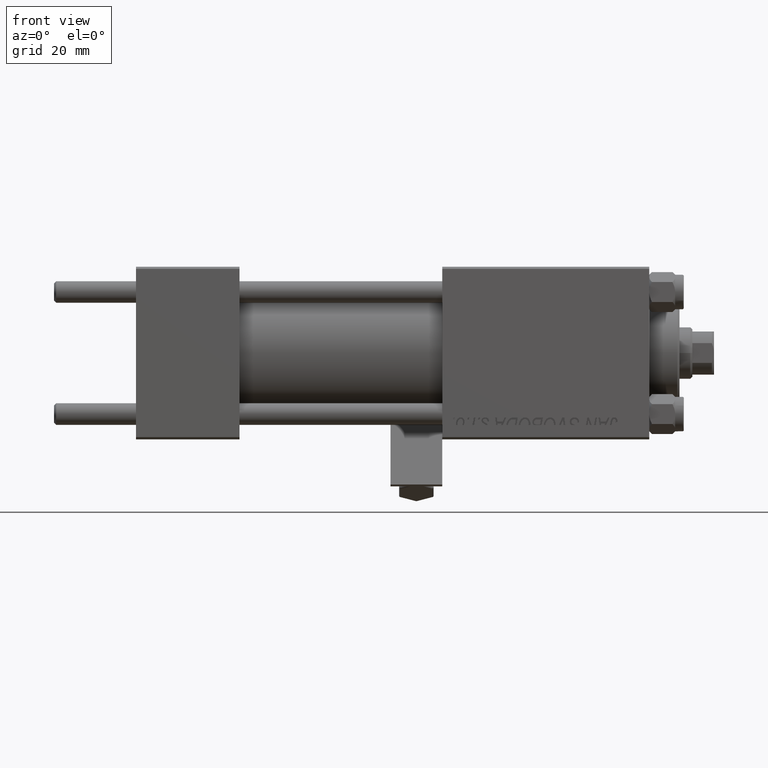
[diagram: clean part render]
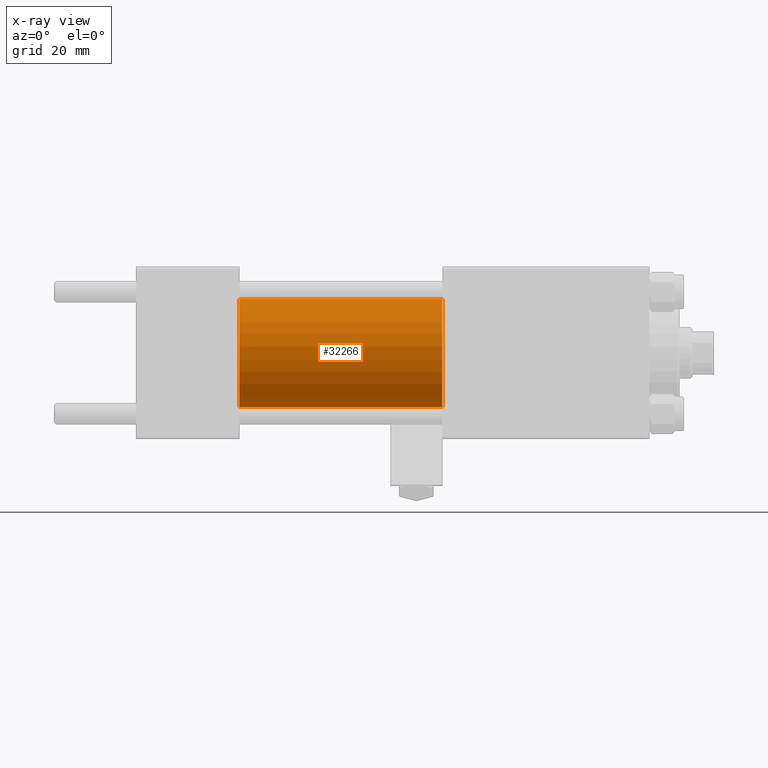
[diagram: x-ray — body ghosted, one internal face saturated and labeled with its STEP entity id]
A machine part, front view, then the same camera in x-ray: the body is ghosted and one INTERNAL B-rep face — a face not visible from any outside direction — is saturated and labeled: STEP entity #32266.
In plain terms, the highlighted cylindrical surface (partial cylindrical patch) has radius 12.5 mm, axis along (-1, -0, -0).
Its self-contained STEP definition (entity closure, byte-faithful):
#2059 = DIRECTION ( 'NONE',  ( -1.000000000000000000, -0.000000000000000000, -0.000000000000000000 ) ) ;
#4307 = EDGE_CURVE ( 'NONE', #15278, #45069, #5639, .T. ) ;
#5176 = CARTESIAN_POINT ( 'NONE',  ( 71.00000000000001421, 0.000000000000000000, 0.000000000000000000 ) ) ;
#5639 = LINE ( 'NONE', #21312, #49707 ) ;
#6751 = CARTESIAN_POINT ( 'NONE',  ( 71.00000000000001421, 0.000000000000000000, 12.49999999999999645 ) ) ;
#7061 = ORIENTED_EDGE ( 'NONE', *, *, #44715, .F. ) ;
#10011 = ORIENTED_EDGE ( 'NONE', *, *, #40077, .T. ) ;
#10749 = CARTESIAN_POINT ( 'NONE',  ( 24.00000000000000000, 0.000000000000000000, 0.000000000000000000 ) ) ;
#10773 = CIRCLE ( 'NONE', #14893, 12.49999999999999645 ) ;
#10969 = CARTESIAN_POINT ( 'NONE',  ( 24.00000000000000000, 0.000000000000000000, 12.49999999999999645 ) ) ;
#11131 = VECTOR ( 'NONE', #2059, 1000.000000000000000 ) ;
#12105 = EDGE_LOOP ( 'NONE', ( #10011, #39775, #37180, #7061 ) ) ;
#14061 = CARTESIAN_POINT ( 'NONE',  ( 71.00000000000001421, 1.530808498934191127E-15, -12.49999999999999645 ) ) ;
#14355 = DIRECTION ( 'NONE',  ( 0.000000000000000000, 0.000000000000000000, -1.000000000000000000 ) ) ;
#14893 = AXIS2_PLACEMENT_3D ( 'NONE', #10749, #26417, #14355 ) ;
#15278 = VERTEX_POINT ( 'NONE', #14061 ) ;
#18394 = CIRCLE ( 'NONE', #39676, 12.49999999999999645 ) ;
#19622 = DIRECTION ( 'NONE',  ( -1.000000000000000000, -0.000000000000000000, -0.000000000000000000 ) ) ;
#21312 = CARTESIAN_POINT ( 'NONE',  ( 71.00000000000001421, 1.530808498934191127E-15, -12.49999999999999645 ) ) ;
#22039 = CARTESIAN_POINT ( 'NONE',  ( 24.00000000000000000, 1.530808498934191127E-15, -12.49999999999999645 ) ) ;
#24809 = AXIS2_PLACEMENT_3D ( 'NONE', #43507, #19622, #35280 ) ;
#24963 = DIRECTION ( 'NONE',  ( 1.000000000000000000, 0.000000000000000000, 0.000000000000000000 ) ) ;
#26417 = DIRECTION ( 'NONE',  ( 1.000000000000000000, 0.000000000000000000, 0.000000000000000000 ) ) ;
#29347 = EDGE_CURVE ( 'NONE', #37928, #45069, #10773, .T. ) ;
#31671 = CYLINDRICAL_SURFACE ( 'NONE', #24809, 12.49999999999999645 ) ;
#32266 = ADVANCED_FACE ( 'NONE', ( #36290 ), #31671, .F. ) ;
#35280 = DIRECTION ( 'NONE',  ( 0.000000000000000000, 0.000000000000000000, 1.000000000000000000 ) ) ;
#36290 = FACE_OUTER_BOUND ( 'NONE', #12105, .T. ) ;
#36999 = LINE ( 'NONE', #45492, #11131 ) ;
#37180 = ORIENTED_EDGE ( 'NONE', *, *, #29347, .F. ) ;
#37928 = VERTEX_POINT ( 'NONE', #10969 ) ;
#39676 = AXIS2_PLACEMENT_3D ( 'NONE', #5176, #24963, #48348 ) ;
#39775 = ORIENTED_EDGE ( 'NONE', *, *, #4307, .T. ) ;
#40077 = EDGE_CURVE ( 'NONE', #42276, #15278, #18394, .T. ) ;
#42276 = VERTEX_POINT ( 'NONE', #6751 ) ;
#43507 = CARTESIAN_POINT ( 'NONE',  ( 71.00000000000001421, 0.000000000000000000, 0.000000000000000000 ) ) ;
#44697 = DIRECTION ( 'NONE',  ( -1.000000000000000000, -0.000000000000000000, -0.000000000000000000 ) ) ;
#44715 = EDGE_CURVE ( 'NONE', #42276, #37928, #36999, .T. ) ;
#45069 = VERTEX_POINT ( 'NONE', #22039 ) ;
#45492 = CARTESIAN_POINT ( 'NONE',  ( 71.00000000000001421, 0.000000000000000000, 12.49999999999999645 ) ) ;
#48348 = DIRECTION ( 'NONE',  ( 0.000000000000000000, 0.000000000000000000, -1.000000000000000000 ) ) ;
#49707 = VECTOR ( 'NONE', #44697, 1000.000000000000000 ) ;